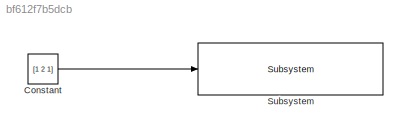
MODEL slx_bf612f7b5dcb
KIND model
CONFIG AbsTol = auto
CONFIG EnableMultiTasking = off
CONFIG FixedStep = auto
CONFIG MaxStep = auto
CONFIG MinStep = auto
CONFIG RelTol = 1e-3
CONFIG SampleTimeConstraint = Unconstrained
CONFIG SolverName = VariableStepAuto
CONFIG StartTime = 0.0
CONFIG StopTime = 10.0
BLOCK [Constant] Constant
  Value = [1 2 1]
BLOCK [Reference] Subsystem  REF=pingcap/Subsystem  (lib defined in slx_86c26b565c1c)
  Ports = [1, 1]
  SourceBlock = pingcap/Subsystem
LINE Constant:1 -> Subsystem:1
